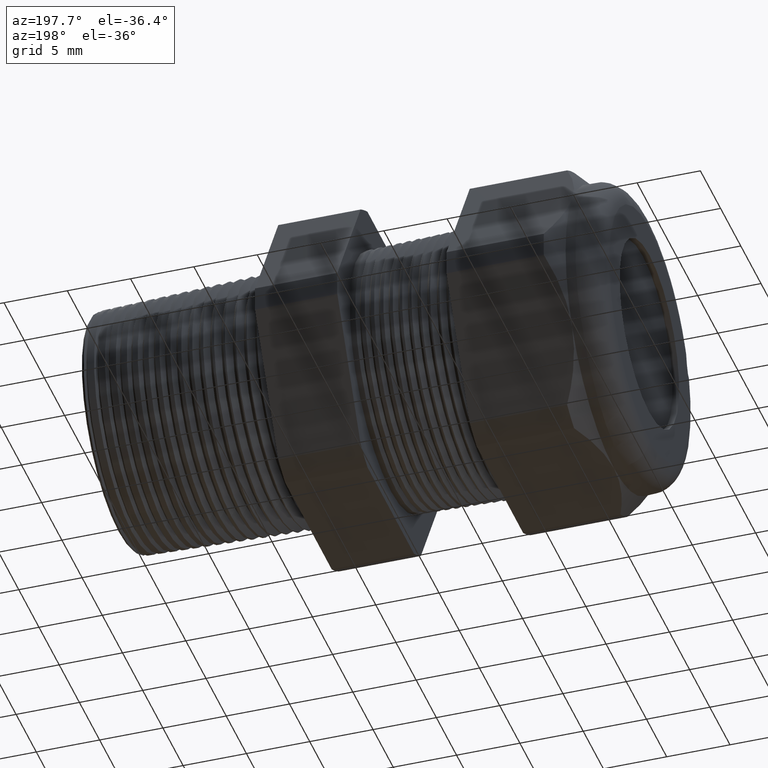
[diagram: clean part render]
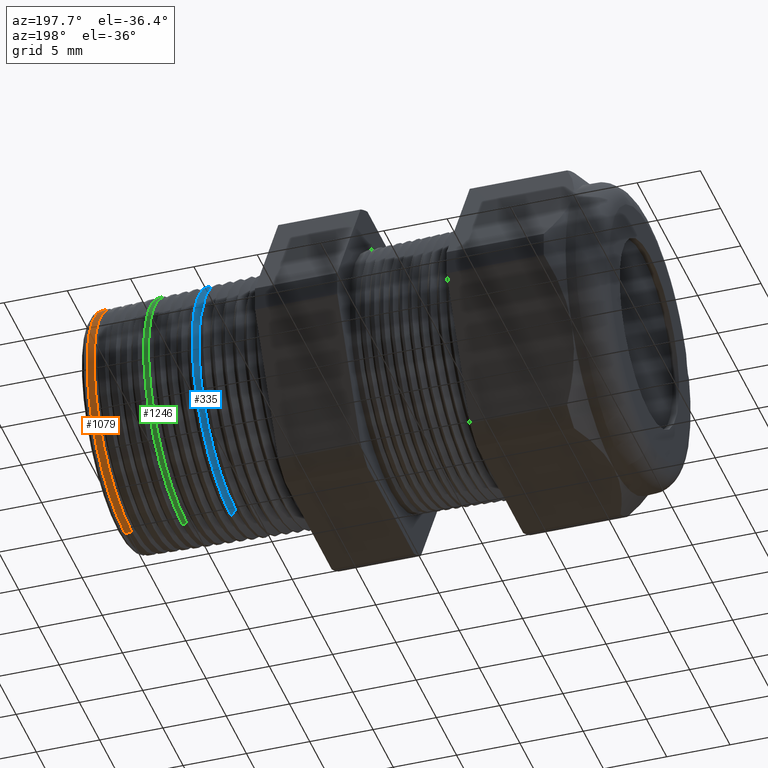
[diagram: same view with three faces highlighted in distinct colors, each labeled with its STEP entity id]
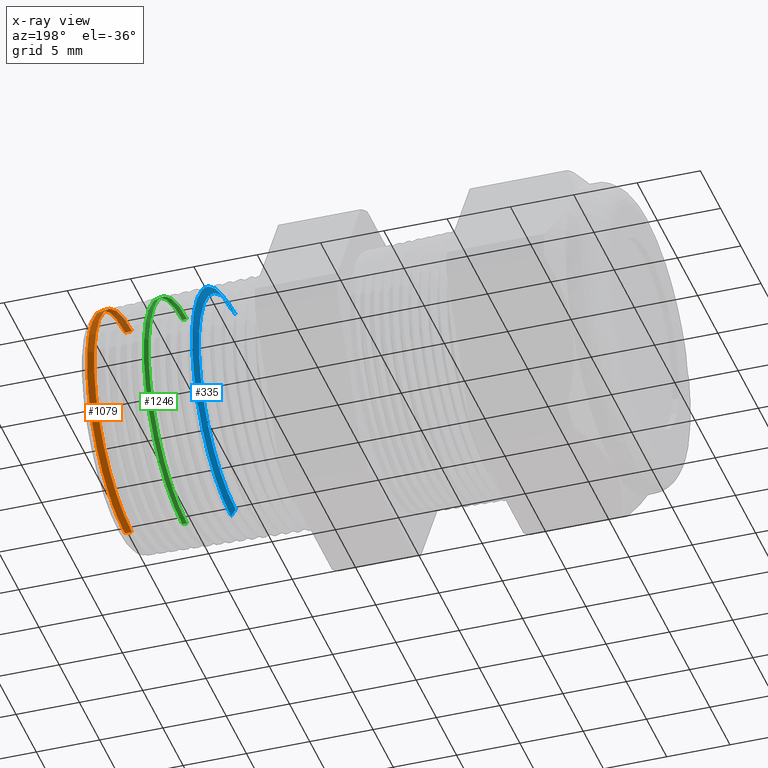
[diagram: x-ray of the same camera — body ghosted, the three highlighted faces saturated]
A machine part, auxiliary view with three faces highlighted in distinct colors.
The next image is the same camera in x-ray (body ghosted, the three faces saturated) — at least one of them is partly hidden behind the body in this view.
Their STEP definitions:

[orange] entity #1079 — the highlighted conical surface has half-angle 2 deg.
#25 = VERTEX_POINT ( 'NONE', #2068 ) ;
#28 = EDGE_CURVE ( 'NONE', #71, #25, #2063, .T. ) ;
#58 = VERTEX_POINT ( 'NONE', #2129 ) ;
#71 = VERTEX_POINT ( 'NONE', #2111 ) ;
#75 = EDGE_CURVE ( 'NONE', #163, #58, #2168, .T. ) ;
#163 = VERTEX_POINT ( 'NONE', #2309 ) ;
#1079 = ADVANCED_FACE ( 'NONE', ( #3937 ), #3936, .T. ) ;
#1080 = EDGE_LOOP ( 'NONE', ( #1081, #1082, #1084, #1085 ) ) ;
#1081 = ORIENTED_EDGE ( 'NONE', *, *, #75, .F. ) ;
#1082 = ORIENTED_EDGE ( 'NONE', *, *, #1083, .T. ) ;
#1083 = EDGE_CURVE ( 'NONE', #163, #25, #3935, .T. ) ;
#1084 = ORIENTED_EDGE ( 'NONE', *, *, #28, .F. ) ;
#1085 = ORIENTED_EDGE ( 'NONE', *, *, #1086, .F. ) ;
#1086 = EDGE_CURVE ( 'NONE', #58, #71, #3927, .T. ) ;
#2059 = DIRECTION ( 'NONE',  ( 0.0000000000000000000, 0.0000000000000000000, -1.000000000000000000 ) ) ;
#2060 = DIRECTION ( 'NONE',  ( -1.000000000000000000, 0.0000000000000000000, 0.0000000000000000000 ) ) ;
#2061 = CARTESIAN_POINT ( 'NONE',  ( 0.2384085732638643000, 0.0000000000000000000, 0.0000000000000000000 ) ) ;
#2062 = AXIS2_PLACEMENT_3D ( 'NONE', #2061, #2060, #2059 ) ;
#2063 = CIRCLE ( 'NONE', #2062, 0.3700561696102825900 ) ;
#2068 = CARTESIAN_POINT ( 'NONE',  ( 0.2384085732638643000, 4.531881036179625200E-017, -0.3700561696102825900 ) ) ;
#2111 = CARTESIAN_POINT ( 'NONE',  ( 0.2384085732638643000, 0.0000000000000000000, 0.3700561696102825900 ) ) ;
#2129 = CARTESIAN_POINT ( 'NONE',  ( 0.2605946313630381200, 0.0000000000000000000, 0.3692814153894710700 ) ) ;
#2159 = DIRECTION ( 'NONE',  ( 0.0000000000000000000, 0.0000000000000000000, 1.000000000000000000 ) ) ;
#2160 = DIRECTION ( 'NONE',  ( 1.000000000000000000, 0.0000000000000000000, 0.0000000000000000000 ) ) ;
#2161 = CARTESIAN_POINT ( 'NONE',  ( 0.2605946313630381200, 0.0000000000000000000, 0.0000000000000000000 ) ) ;
#2162 = AXIS2_PLACEMENT_3D ( 'NONE', #2161, #2160, #2159 ) ;
#2168 = CIRCLE ( 'NONE', #2162, 0.3692814153894710700 ) ;
#2309 = CARTESIAN_POINT ( 'NONE',  ( 0.2605946313630381200, 4.527137034796412300E-017, -0.3692814153894710700 ) ) ;
#3924 = DIRECTION ( 'NONE',  ( -0.9993908270190959800, 0.0000000000000000000, 0.03489949670249394000 ) ) ;
#3925 = VECTOR ( 'NONE', #3924, 39.37007874015748100 ) ;
#3926 = CARTESIAN_POINT ( 'NONE',  ( 0.2800000000000000300, 0.0000000000000000000, 0.3686037649843973400 ) ) ;
#3927 = LINE ( 'NONE', #3926, #3925 ) ;
#3928 = DIRECTION ( 'NONE',  ( -0.9993908270190959800, 4.273955692856281300E-018, -0.03489949670249394000 ) ) ;
#3929 = VECTOR ( 'NONE', #3928, 39.37007874015748100 ) ;
#3930 = CARTESIAN_POINT ( 'NONE',  ( 0.2800000000000000300, 4.514094209418054200E-017, -0.3686037649843973400 ) ) ;
#3931 = DIRECTION ( 'NONE',  ( 0.0000000000000000000, 0.0000000000000000000, 1.000000000000000000 ) ) ;
#3932 = DIRECTION ( 'NONE',  ( -1.000000000000000000, 0.0000000000000000000, 0.0000000000000000000 ) ) ;
#3933 = CARTESIAN_POINT ( 'NONE',  ( 0.2800000000000000300, 0.0000000000000000000, 0.0000000000000000000 ) ) ;
#3934 = AXIS2_PLACEMENT_3D ( 'NONE', #3933, #3932, #3931 ) ;
#3935 = LINE ( 'NONE', #3930, #3929 ) ;
#3936 = CONICAL_SURFACE ( 'NONE', #3934, 0.3686037649843973400, 0.03490658503987955500 ) ;
#3937 = FACE_OUTER_BOUND ( 'NONE', #1080, .T. ) ;

[blue] entity #335 — the highlighted conical surface has half-angle 58 deg.
#310 = EDGE_CURVE ( 'NONE', #322, #381, #2597, .T. ) ;
#318 = EDGE_CURVE ( 'NONE', #410, #409, #2644, .T. ) ;
#321 = ORIENTED_EDGE ( 'NONE', *, *, #310, .T. ) ;
#322 = VERTEX_POINT ( 'NONE', #2633 ) ;
#335 = ADVANCED_FACE ( 'NONE', ( #2614 ), #2615, .T. ) ;
#336 = EDGE_LOOP ( 'NONE', ( #362, #363, #321, #346 ) ) ;
#346 = ORIENTED_EDGE ( 'NONE', *, *, #425, .F. ) ;
#362 = ORIENTED_EDGE ( 'NONE', *, *, #318, .T. ) ;
#363 = ORIENTED_EDGE ( 'NONE', *, *, #364, .T. ) ;
#364 = EDGE_CURVE ( 'NONE', #409, #322, #2740, .T. ) ;
#381 = VERTEX_POINT ( 'NONE', #2759 ) ;
#409 = VERTEX_POINT ( 'NONE', #2825 ) ;
#410 = VERTEX_POINT ( 'NONE', #2824 ) ;
#425 = EDGE_CURVE ( 'NONE', #410, #381, #2862, .T. ) ;
#2593 = DIRECTION ( 'NONE',  ( 0.0000000000000000000, 0.0000000000000000000, -1.000000000000000000 ) ) ;
#2594 = DIRECTION ( 'NONE',  ( -1.000000000000000000, 0.0000000000000000000, 0.0000000000000000000 ) ) ;
#2595 = CARTESIAN_POINT ( 'NONE',  ( -0.06986462242626885500, 0.0000000000000000000, 0.0000000000000000000 ) ) ;
#2596 = AXIS2_PLACEMENT_3D ( 'NONE', #2595, #2594, #2593 ) ;
#2597 = CIRCLE ( 'NONE', #2596, 0.3808213068174600700 ) ;
#2614 = FACE_OUTER_BOUND ( 'NONE', #336, .T. ) ;
#2615 = CONICAL_SURFACE ( 'NONE', #2675, 0.3586208171594785200, 1.012290966156729600 ) ;
#2620 = CARTESIAN_POINT ( 'NONE',  ( -0.08373702801092100500, 0.0000000000000000000, 0.0000000000000000000 ) ) ;
#2633 = CARTESIAN_POINT ( 'NONE',  ( -0.06986462242626885500, 0.0000000000000000000, 0.3808213068174599600 ) ) ;
#2640 = DIRECTION ( 'NONE',  ( 0.0000000000000000000, 0.0000000000000000000, -1.000000000000000000 ) ) ;
#2641 = DIRECTION ( 'NONE',  ( 1.000000000000000000, 0.0000000000000000000, 0.0000000000000000000 ) ) ;
#2642 = CARTESIAN_POINT ( 'NONE',  ( -0.08373702801092100500, 0.0000000000000000000, 0.0000000000000000000 ) ) ;
#2643 = AXIS2_PLACEMENT_3D ( 'NONE', #2642, #2641, #2640 ) ;
#2644 = CIRCLE ( 'NONE', #2643, 0.3586208171594785200 ) ;
#2673 = DIRECTION ( 'NONE',  ( 0.0000000000000000000, 0.0000000000000000000, -1.000000000000000000 ) ) ;
#2674 = DIRECTION ( 'NONE',  ( 1.000000000000000000, 0.0000000000000000000, 0.0000000000000000000 ) ) ;
#2675 = AXIS2_PLACEMENT_3D ( 'NONE', #2620, #2674, #2673 ) ;
#2737 = DIRECTION ( 'NONE',  ( 0.5299192642331892500, 1.038559386480985800E-016, 0.8480480961564357300 ) ) ;
#2738 = VECTOR ( 'NONE', #2737, 39.37007874015748900 ) ;
#2739 = CARTESIAN_POINT ( 'NONE',  ( -0.08373702801092100500, 4.391838358419635400E-017, 0.3586208171594785200 ) ) ;
#2740 = LINE ( 'NONE', #2739, #2738 ) ;
#2759 = CARTESIAN_POINT ( 'NONE',  ( -0.06986462242626885500, 4.663715944411144300E-017, -0.3808213068174599600 ) ) ;
#2824 = CARTESIAN_POINT ( 'NONE',  ( -0.08373702801092100500, 4.533371404240670700E-017, -0.3586208171594785200 ) ) ;
#2825 = CARTESIAN_POINT ( 'NONE',  ( -0.08373702801092100500, 0.0000000000000000000, 0.3586208171594785200 ) ) ;
#2859 = DIRECTION ( 'NONE',  ( 0.5299192642331892500, 0.0000000000000000000, -0.8480480961564357300 ) ) ;
#2860 = VECTOR ( 'NONE', #2859, 39.37007874015748900 ) ;
#2861 = CARTESIAN_POINT ( 'NONE',  ( -0.08373702801092100500, 0.0000000000000000000, -0.3586208171594785200 ) ) ;
#2862 = LINE ( 'NONE', #2861, #2860 ) ;

[green] entity #1246 — the highlighted conical surface has half-angle 2 deg.
#124 = EDGE_CURVE ( 'NONE', #142, #125, #2254, .T. ) ;
#125 = VERTEX_POINT ( 'NONE', #2249 ) ;
#142 = VERTEX_POINT ( 'NONE', #2282 ) ;
#286 = VERTEX_POINT ( 'NONE', #2577 ) ;
#343 = VERTEX_POINT ( 'NONE', #2656 ) ;
#344 = EDGE_CURVE ( 'NONE', #286, #343, #2655, .T. ) ;
#1225 = EDGE_CURVE ( 'NONE', #142, #343, #4177, .T. ) ;
#1226 = ORIENTED_EDGE ( 'NONE', *, *, #344, .F. ) ;
#1227 = ORIENTED_EDGE ( 'NONE', *, *, #1228, .F. ) ;
#1228 = EDGE_CURVE ( 'NONE', #125, #286, #4171, .T. ) ;
#1246 = ADVANCED_FACE ( 'NONE', ( #4258 ), #4256, .T. ) ;
#1299 = EDGE_LOOP ( 'NONE', ( #1300, #1301, #1226, #1227 ) ) ;
#1300 = ORIENTED_EDGE ( 'NONE', *, *, #124, .F. ) ;
#1301 = ORIENTED_EDGE ( 'NONE', *, *, #1225, .T. ) ;
#2249 = CARTESIAN_POINT ( 'NONE',  ( 0.08228380906208870900, 0.0000000000000000000, 0.3755081665129251200 ) ) ;
#2250 = DIRECTION ( 'NONE',  ( 0.0000000000000000000, 0.0000000000000000000, 1.000000000000000000 ) ) ;
#2251 = DIRECTION ( 'NONE',  ( 1.000000000000000000, 0.0000000000000000000, 0.0000000000000000000 ) ) ;
#2252 = CARTESIAN_POINT ( 'NONE',  ( 0.08228380906208870900, 0.0000000000000000000, 0.0000000000000000000 ) ) ;
#2253 = AXIS2_PLACEMENT_3D ( 'NONE', #2252, #2251, #2250 ) ;
#2254 = CIRCLE ( 'NONE', #2253, 0.3755081665129251200 ) ;
#2282 = CARTESIAN_POINT ( 'NONE',  ( 0.08228380906208870900, 4.601885696800627200E-017, -0.3755081665129251200 ) ) ;
#2577 = CARTESIAN_POINT ( 'NONE',  ( 0.06714568676934686000, 0.0000000000000000000, 0.3760368013920477600 ) ) ;
#2651 = DIRECTION ( 'NONE',  ( 0.0000000000000000000, 0.0000000000000000000, -1.000000000000000000 ) ) ;
#2652 = DIRECTION ( 'NONE',  ( -1.000000000000000000, 0.0000000000000000000, 0.0000000000000000000 ) ) ;
#2653 = CARTESIAN_POINT ( 'NONE',  ( 0.06714568676934686000, 0.0000000000000000000, 0.0000000000000000000 ) ) ;
#2654 = AXIS2_PLACEMENT_3D ( 'NONE', #2653, #2652, #2651 ) ;
#2655 = CIRCLE ( 'NONE', #2654, 0.3760368013920478100 ) ;
#2656 = CARTESIAN_POINT ( 'NONE',  ( 0.06714568676934686000, 4.605122651863802600E-017, -0.3760368013920477600 ) ) ;
#4167 = CARTESIAN_POINT ( 'NONE',  ( 0.2800000000000000300, 0.0000000000000000000, 0.3686037649843973400 ) ) ;
#4168 = DIRECTION ( 'NONE',  ( -0.9993908270190959800, 4.273955692856281300E-018, -0.03489949670249394000 ) ) ;
#4169 = VECTOR ( 'NONE', #4168, 39.37007874015748100 ) ;
#4170 = CARTESIAN_POINT ( 'NONE',  ( 0.2800000000000000300, 4.514094209418054200E-017, -0.3686037649843973400 ) ) ;
#4171 = LINE ( 'NONE', #4167, #4228 ) ;
#4177 = LINE ( 'NONE', #4170, #4169 ) ;
#4227 = DIRECTION ( 'NONE',  ( -0.9993908270190959800, 0.0000000000000000000, 0.03489949670249394000 ) ) ;
#4228 = VECTOR ( 'NONE', #4227, 39.37007874015748100 ) ;
#4252 = DIRECTION ( 'NONE',  ( 0.0000000000000000000, 0.0000000000000000000, 1.000000000000000000 ) ) ;
#4253 = DIRECTION ( 'NONE',  ( -1.000000000000000000, 0.0000000000000000000, 0.0000000000000000000 ) ) ;
#4254 = CARTESIAN_POINT ( 'NONE',  ( 0.2800000000000000300, 0.0000000000000000000, 0.0000000000000000000 ) ) ;
#4255 = AXIS2_PLACEMENT_3D ( 'NONE', #4254, #4253, #4252 ) ;
#4256 = CONICAL_SURFACE ( 'NONE', #4255, 0.3686037649843973400, 0.03490658503987955500 ) ;
#4258 = FACE_OUTER_BOUND ( 'NONE', #1299, .T. ) ;